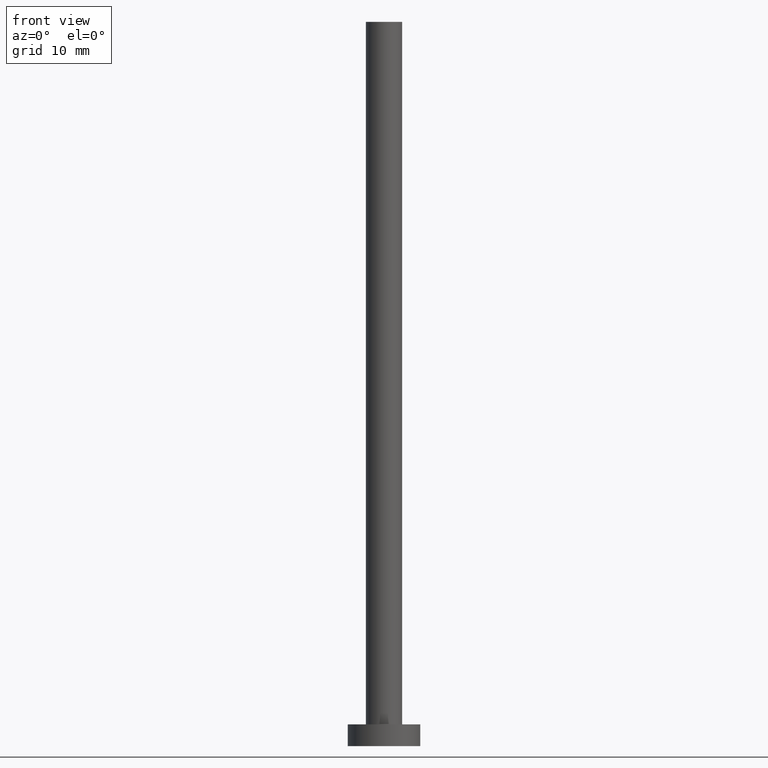
[diagram: clean part render]
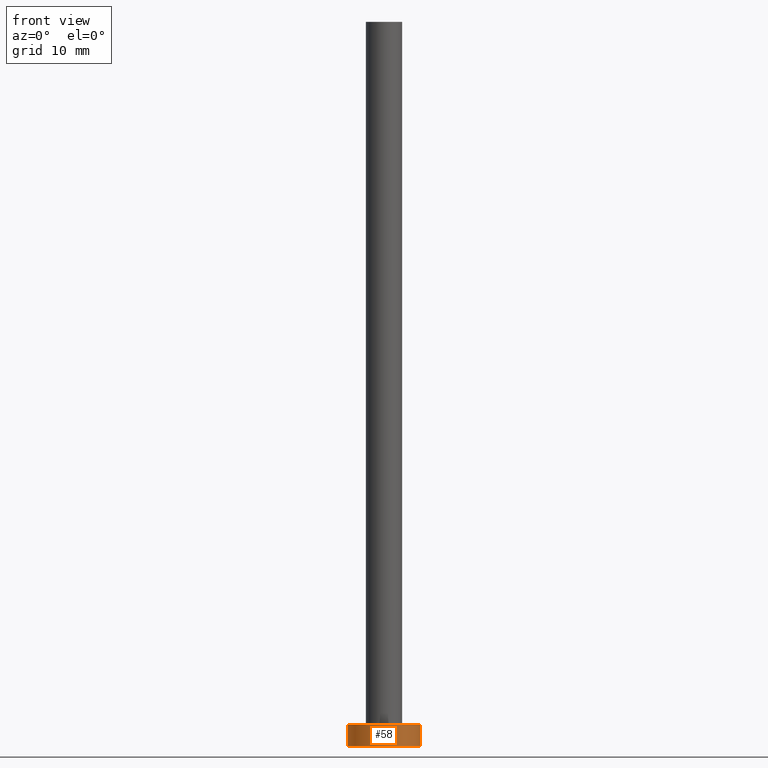
[diagram: same view with one face highlighted and labeled with its STEP entity id]
A machine part, front view. The second image highlights one B-rep face of the part: STEP entity #58.
In plain terms, the highlighted cylindrical surface (edge-blend (fillet) strip) has radius 5 mm, axis along (-0, -0, -1).
Its self-contained STEP definition (entity closure, byte-faithful):
#2 = DIRECTION ( 'NONE',  ( 0.000000000000000000, 0.000000000000000000, 1.000000000000000000 ) ) ;
#8 = VERTEX_POINT ( 'NONE', #151 ) ;
#14 = EDGE_CURVE ( 'NONE', #107, #226, #69, .T. ) ;
#19 = CARTESIAN_POINT ( 'NONE',  ( 0.000000000000000000, 0.000000000000000000, 3.000000000000000000 ) ) ;
#23 = ORIENTED_EDGE ( 'NONE', *, *, #91, .F. ) ;
#44 = VECTOR ( 'NONE', #211, 1000.000000000000000 ) ;
#46 = CARTESIAN_POINT ( 'NONE',  ( -5.000000000000000000, 0.000000000000000000, 3.000000000000000000 ) ) ;
#53 = CARTESIAN_POINT ( 'NONE',  ( 5.000000000000000000, 6.123233995736766282E-16, 3.000000000000000000 ) ) ;
#58 = ADVANCED_FACE ( 'NONE', ( #140 ), #93, .T. ) ;
#62 = CARTESIAN_POINT ( 'NONE',  ( -5.000000000000000000, 0.000000000000000000, 0.000000000000000000 ) ) ;
#69 = LINE ( 'NONE', #46, #44 ) ;
#86 = ORIENTED_EDGE ( 'NONE', *, *, #14, .T. ) ;
#91 = EDGE_CURVE ( 'NONE', #157, #8, #120, .T. ) ;
#93 = CYLINDRICAL_SURFACE ( 'NONE', #250, 5.000000000000000000 ) ;
#103 = CIRCLE ( 'NONE', #252, 5.000000000000000000 ) ;
#107 = VERTEX_POINT ( 'NONE', #196 ) ;
#112 = AXIS2_PLACEMENT_3D ( 'NONE', #163, #233, #235 ) ;
#117 = EDGE_LOOP ( 'NONE', ( #23, #166, #86, #175 ) ) ;
#120 = LINE ( 'NONE', #229, #155 ) ;
#130 = DIRECTION ( 'NONE',  ( 1.000000000000000000, 0.000000000000000000, 0.000000000000000000 ) ) ;
#140 = FACE_OUTER_BOUND ( 'NONE', #117, .T. ) ;
#151 = CARTESIAN_POINT ( 'NONE',  ( 5.000000000000000000, 6.123233995736766282E-16, 0.000000000000000000 ) ) ;
#155 = VECTOR ( 'NONE', #255, 1000.000000000000000 ) ;
#157 = VERTEX_POINT ( 'NONE', #53 ) ;
#158 = EDGE_CURVE ( 'NONE', #226, #8, #217, .T. ) ;
#163 = CARTESIAN_POINT ( 'NONE',  ( 0.000000000000000000, 0.000000000000000000, 0.000000000000000000 ) ) ;
#164 = EDGE_CURVE ( 'NONE', #107, #157, #103, .T. ) ;
#166 = ORIENTED_EDGE ( 'NONE', *, *, #164, .F. ) ;
#175 = ORIENTED_EDGE ( 'NONE', *, *, #158, .T. ) ;
#179 = DIRECTION ( 'NONE',  ( -0.000000000000000000, -0.000000000000000000, -1.000000000000000000 ) ) ;
#180 = CARTESIAN_POINT ( 'NONE',  ( 0.000000000000000000, 0.000000000000000000, 3.000000000000000000 ) ) ;
#196 = CARTESIAN_POINT ( 'NONE',  ( -5.000000000000000000, 0.000000000000000000, 3.000000000000000000 ) ) ;
#211 = DIRECTION ( 'NONE',  ( -0.000000000000000000, -0.000000000000000000, -1.000000000000000000 ) ) ;
#217 = CIRCLE ( 'NONE', #112, 5.000000000000000000 ) ;
#226 = VERTEX_POINT ( 'NONE', #62 ) ;
#229 = CARTESIAN_POINT ( 'NONE',  ( 5.000000000000000000, 6.123233995736766282E-16, 3.000000000000000000 ) ) ;
#233 = DIRECTION ( 'NONE',  ( 0.000000000000000000, 0.000000000000000000, 1.000000000000000000 ) ) ;
#235 = DIRECTION ( 'NONE',  ( 1.000000000000000000, 0.000000000000000000, 0.000000000000000000 ) ) ;
#247 = DIRECTION ( 'NONE',  ( -1.000000000000000000, 0.000000000000000000, 0.000000000000000000 ) ) ;
#250 = AXIS2_PLACEMENT_3D ( 'NONE', #180, #179, #247 ) ;
#252 = AXIS2_PLACEMENT_3D ( 'NONE', #19, #2, #130 ) ;
#255 = DIRECTION ( 'NONE',  ( -0.000000000000000000, -0.000000000000000000, -1.000000000000000000 ) ) ;